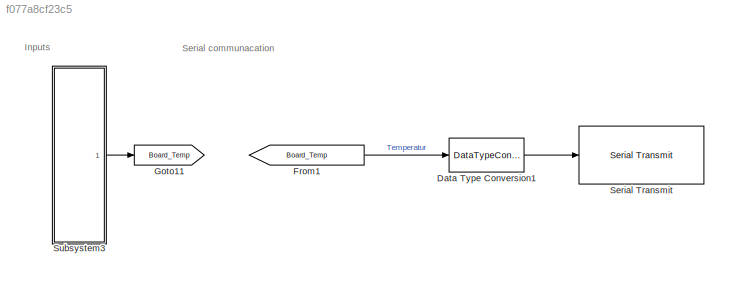
MODEL slx_f077a8cf23c5
KIND model
CONFIG AbsTol = auto
CONFIG EnableMultiTasking = on
CONFIG FixedStep = auto
CONFIG MaxStep = auto
CONFIG MinStep = auto
CONFIG RelTol = 1e-3
CONFIG SampleTimeConstraint = Unconstrained
CONFIG SolverName = ode45
CONFIG StartTime = 0.0
CONFIG StopTime = 10.0
BLOCK [DataTypeConversion] Data Type Conversion1
  OutDataTypeStr = double
  RndMeth = Floor
  SaturateOnIntegerOverflow = off
BLOCK [From] From1
  GotoTag = Board_Temp
BLOCK [Goto] Goto11
  GotoTag = Board_Temp
BLOCK [Reference] Serial Transmit  REF=arduinolib/Serial Transmit
  Ports = [1]
  SourceBlock = arduinolib/Serial Transmit
  SourceProductBaseCode = ARDUINO
  SourceType = Arduino Serial Transmit
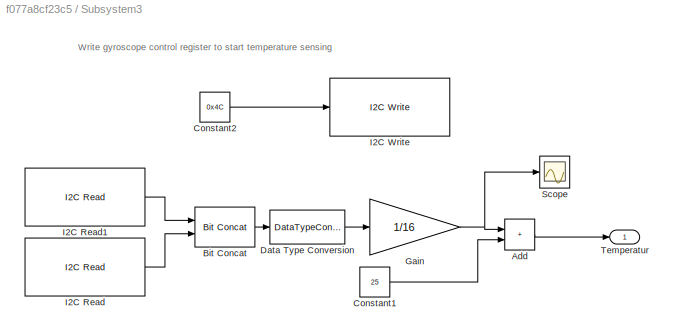
BLOCK [SubSystem] Subsystem3
  Ports = [0, 1]
  RequestExecContextInheritance = off
BLOCK [Sum] Subsystem3/Add
  AccumDataTypeStr = fixdt(1,32,15)
  IconShape = rectangular
  Ports = [2, 1]
BLOCK [Reference] Subsystem3/Bit Concat  REF=hdlsllib/Logic and Bit
Operations/Bit Concat
  Ports = [2, 1]
  SourceBlock = hdlsllib/Logic and Bit\nOperations/Bit Concat
  SourceProductBaseCode = SL
  SourceType = Bit Concat
BLOCK [Constant] Subsystem3/Constant1
  OutDataTypeStr = fixdt(1,32,15)
  SampleTime = 0.1
  Value = 25
BLOCK [Constant] Subsystem3/Constant2
  Value = 0x4C
BLOCK [DataTypeConversion] Subsystem3/Data Type Conversion
  ConvertRealWorld = Stored Integer (SI)
  OutDataTypeStr = int16
  RndMeth = Floor
  SaturateOnIntegerOverflow = off
BLOCK [Gain] Subsystem3/Gain
  Gain = 1/16
  OutDataTypeStr = fixdt(1,32,15)
BLOCK [Reference] Subsystem3/I2C Read  REF=arduinolib/I2C Read
  Ports = [0, 1]
  SourceBlock = arduinolib/I2C Read
  SourceProductBaseCode = ARDUINO
  SourceType = I2C Read
BLOCK [Reference] Subsystem3/I2C Read1  REF=arduinolib/I2C Read
  Ports = [0, 1]
  SourceBlock = arduinolib/I2C Read
  SourceProductBaseCode = ARDUINO
  SourceType = I2C Read
BLOCK [Reference] Subsystem3/I2C Write  REF=arduinolib/I2C Write
  Ports = [1]
  SourceBlock = arduinolib/I2C Write
  SourceProductBaseCode = ARDUINO
  SourceType = I2C Write
BLOCK [Scope] Subsystem3/Scope
  Floating = off
  NumInputPorts = 1
  Ports = [1]
  ScopeSpecificationString = Simulink.scopes.TimeScopeBlockCfg('CurrentConfiguration', extmgr.ConfigurationSet(extmgr.Configuration('Core','General UI',true),extmgr.Configuration('Core','Source UI',true),extmgr.Configuration('Sources','WiredSimulink',true,'DataLoggingVariableName','ScopeData1'),extmgr.Configuration('Visuals','Time Domain',true,'SerializedDisplays',{struct('MinYLimReal','2.95312','MaxYLimReal','3.42188','YLabe...<+1361ch>
BLOCK [Outport] Subsystem3/Temperatur
  OutDataTypeStr = fixdt(1,32,15)
ANNOTATION (root): Inputs
ANNOTATION (root): Serial communacation
ANNOTATION Subsystem3: Write gyroscope control register to start temperature sensing
LINE Data Type Conversion1:1 -> Serial Transmit:1
LINE From1:1 -> Data Type Conversion1:1
LINE Subsystem3/Add:1 -> Subsystem3/Temperatur:1
LINE Subsystem3/Bit Concat:1 -> Subsystem3/Data Type Conversion:1
LINE Subsystem3/Constant1:1 -> Subsystem3/Add:2
LINE Subsystem3/Constant2:1 -> Subsystem3/I2C Write:1
LINE Subsystem3/Data Type Conversion:1 -> Subsystem3/Gain:1
NET Subsystem3/Gain:1 -> Subsystem3/Add:1, Subsystem3/Scope:1
LINE Subsystem3/I2C Read1:1 -> Subsystem3/Bit Concat:1
LINE Subsystem3/I2C Read:1 -> Subsystem3/Bit Concat:2
LINE Subsystem3:1 -> Goto11:1
note: NET lines group one-source signal fan-out (src -> all destinations, sorted); 1:1 wires keep LINE
